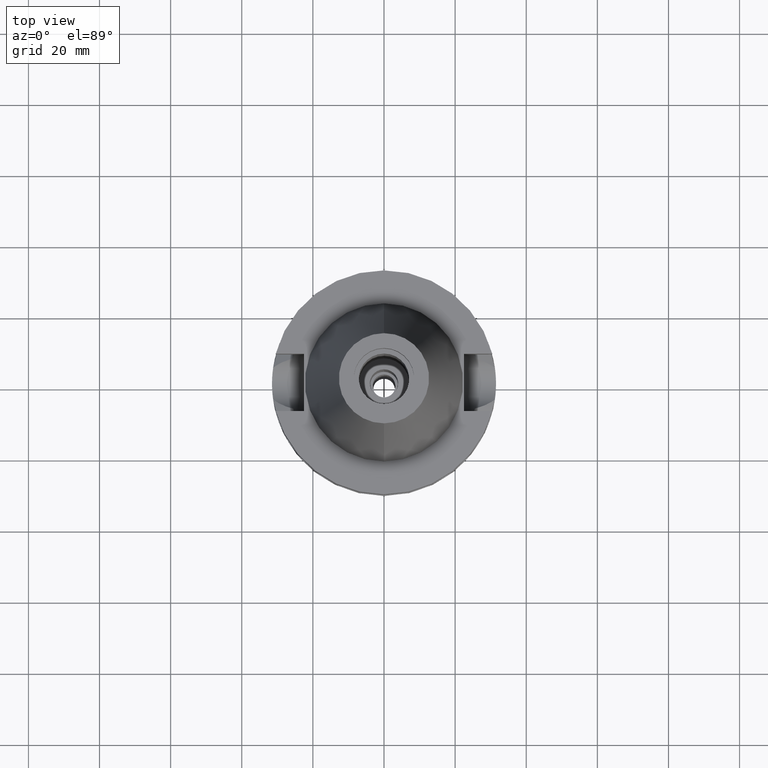
[diagram: clean part render]
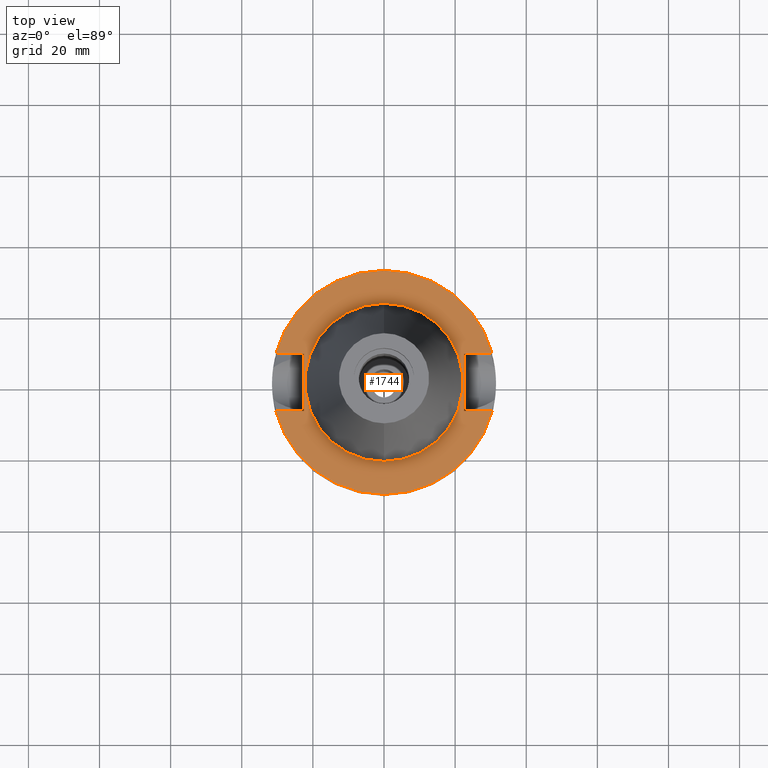
[diagram: same view with one face highlighted and labeled with its STEP entity id]
A machine part, top view. The second image highlights one B-rep face of the part: STEP entity #1744.
In plain terms, the highlighted planar face has unit normal (0, 0, -1).
Its self-contained STEP definition (entity closure, byte-faithful):
#2 = CARTESIAN_POINT ( 'NONE',  ( -22.50000000000000000, -8.050000000000000711, -1.000000000000000000 ) ) ;
#99 = CARTESIAN_POINT ( 'NONE',  ( -22.50000000000000000, 8.050000000000000711, -1.000000000000000000 ) ) ;
#102 = DIRECTION ( 'NONE',  ( -1.000000000000000000, 3.550916904668000126E-14, 0.0000000000000000000 ) ) ;
#144 = CARTESIAN_POINT ( 'NONE',  ( 0.0000000000000000000, -22.22500000000000142, -1.000000000000000000 ) ) ;
#175 = EDGE_CURVE ( 'NONE', #1245, #2963, #1707, .T. ) ;
#217 = VECTOR ( 'NONE', #102, 1000.000000000000000 ) ;
#241 = DIRECTION ( 'NONE',  ( 0.0000000000000000000, -1.000000000000000000, 0.0000000000000000000 ) ) ;
#254 = ORIENTED_EDGE ( 'NONE', *, *, #1003, .F. ) ;
#276 = DIRECTION ( 'NONE',  ( 0.0000000000000000000, -1.000000000000000000, 0.0000000000000000000 ) ) ;
#334 = CARTESIAN_POINT ( 'NONE',  ( 0.0000000000000000000, 2.136641270472000125E-14, -1.000000000000000000 ) ) ;
#388 = VERTEX_POINT ( 'NONE', #2945 ) ;
#537 = ORIENTED_EDGE ( 'NONE', *, *, #175, .F. ) ;
#576 = DIRECTION ( 'NONE',  ( 0.0000000000000000000, -1.000000000000000000, 0.0000000000000000000 ) ) ;
#591 = LINE ( 'NONE', #1011, #1329 ) ;
#639 = VECTOR ( 'NONE', #276, 1000.000000000000000 ) ;
#668 = VERTEX_POINT ( 'NONE', #1925 ) ;
#713 = CIRCLE ( 'NONE', #1464, 31.50000000000000000 ) ;
#756 = EDGE_CURVE ( 'NONE', #2852, #1629, #2573, .T. ) ;
#776 = LINE ( 'NONE', #1441, #1405 ) ;
#820 = ORIENTED_EDGE ( 'NONE', *, *, #1852, .T. ) ;
#860 = ORIENTED_EDGE ( 'NONE', *, *, #1438, .F. ) ;
#872 = FACE_BOUND ( 'NONE', #2811, .T. ) ;
#895 = CARTESIAN_POINT ( 'NONE',  ( -30.45402272279000044, 8.050000000000000711, -1.000000000000000000 ) ) ;
#916 = ORIENTED_EDGE ( 'NONE', *, *, #2850, .F. ) ;
#935 = CARTESIAN_POINT ( 'NONE',  ( -22.50000000000000000, -8.050000000000000711, -1.000000000000000000 ) ) ;
#985 = CARTESIAN_POINT ( 'NONE',  ( 22.50000000000000000, 8.050000000000000711, -1.000000000000000000 ) ) ;
#996 = DIRECTION ( 'NONE',  ( 0.0000000000000000000, 0.0000000000000000000, 1.000000000000000000 ) ) ;
#1003 = EDGE_CURVE ( 'NONE', #1302, #668, #713, .T. ) ;
#1011 = CARTESIAN_POINT ( 'NONE',  ( 22.50000000000000000, -8.050000000000000711, -1.000000000000000000 ) ) ;
#1012 = DIRECTION ( 'NONE',  ( 0.0000000000000000000, 1.000000000000000000, 0.0000000000000000000 ) ) ;
#1049 = CARTESIAN_POINT ( 'NONE',  ( 0.0000000000000000000, 2.136641270472000125E-14, -1.000000000000000000 ) ) ;
#1052 = VERTEX_POINT ( 'NONE', #985 ) ;
#1064 = DIRECTION ( 'NONE',  ( 0.0000000000000000000, -1.000000000000000000, 0.0000000000000000000 ) ) ;
#1095 = CIRCLE ( 'NONE', #1263, 22.22500000000000142 ) ;
#1119 = ORIENTED_EDGE ( 'NONE', *, *, #2343, .T. ) ;
#1131 = AXIS2_PLACEMENT_3D ( 'NONE', #334, #2214, #576 ) ;
#1222 = DIRECTION ( 'NONE',  ( 0.0000000000000000000, 0.0000000000000000000, -1.000000000000000000 ) ) ;
#1245 = VERTEX_POINT ( 'NONE', #2448 ) ;
#1259 = LINE ( 'NONE', #2689, #217 ) ;
#1263 = AXIS2_PLACEMENT_3D ( 'NONE', #2823, #996, #2651 ) ;
#1302 = VERTEX_POINT ( 'NONE', #895 ) ;
#1329 = VECTOR ( 'NONE', #2653, 1000.000000000000000 ) ;
#1370 = ORIENTED_EDGE ( 'NONE', *, *, #1783, .F. ) ;
#1394 = VERTEX_POINT ( 'NONE', #2 ) ;
#1405 = VECTOR ( 'NONE', #1682, 1000.000000000000000 ) ;
#1438 = EDGE_CURVE ( 'NONE', #1394, #388, #2070, .T. ) ;
#1441 = CARTESIAN_POINT ( 'NONE',  ( 22.50000000000000000, 8.050000000000000711, -1.000000000000000000 ) ) ;
#1461 = AXIS2_PLACEMENT_3D ( 'NONE', #1049, #2706, #1064 ) ;
#1464 = AXIS2_PLACEMENT_3D ( 'NONE', #2808, #1222, #1012 ) ;
#1476 = EDGE_LOOP ( 'NONE', ( #1119, #537, #1944, #1963, #820, #254, #916, #860 ) ) ;
#1560 = CARTESIAN_POINT ( 'NONE',  ( 0.0000000000000000000, 22.22500000000000142, -1.000000000000000000 ) ) ;
#1608 = LINE ( 'NONE', #2075, #639 ) ;
#1629 = VERTEX_POINT ( 'NONE', #1560 ) ;
#1682 = DIRECTION ( 'NONE',  ( 1.000000000000000000, -3.506251283225999947E-14, 0.0000000000000000000 ) ) ;
#1707 = CIRCLE ( 'NONE', #1131, 31.50000000000000000 ) ;
#1744 = ADVANCED_FACE ( 'NONE', ( #2221, #872 ), #2697, .F. ) ;
#1783 = EDGE_CURVE ( 'NONE', #1629, #2852, #1095, .T. ) ;
#1852 = EDGE_CURVE ( 'NONE', #1052, #668, #776, .T. ) ;
#1882 = VERTEX_POINT ( 'NONE', #2378 ) ;
#1925 = CARTESIAN_POINT ( 'NONE',  ( 30.45402272279000044, 8.050000000000000711, -1.000000000000000000 ) ) ;
#1944 = ORIENTED_EDGE ( 'NONE', *, *, #2839, .F. ) ;
#1963 = ORIENTED_EDGE ( 'NONE', *, *, #2193, .F. ) ;
#2070 = LINE ( 'NONE', #935, #2290 ) ;
#2075 = CARTESIAN_POINT ( 'NONE',  ( 22.50000000000000000, 8.050000000000000711, -1.000000000000000000 ) ) ;
#2123 = DIRECTION ( 'NONE',  ( 0.0000000000000000000, 0.0000000000000000000, -1.000000000000000000 ) ) ;
#2193 = EDGE_CURVE ( 'NONE', #1052, #1882, #1608, .T. ) ;
#2213 = LINE ( 'NONE', #99, #2717 ) ;
#2214 = DIRECTION ( 'NONE',  ( 0.0000000000000000000, 0.0000000000000000000, -1.000000000000000000 ) ) ;
#2221 = FACE_OUTER_BOUND ( 'NONE', #1476, .T. ) ;
#2277 = ORIENTED_EDGE ( 'NONE', *, *, #756, .F. ) ;
#2290 = VECTOR ( 'NONE', #2542, 1000.000000000000000 ) ;
#2343 = EDGE_CURVE ( 'NONE', #1394, #2963, #1259, .T. ) ;
#2378 = CARTESIAN_POINT ( 'NONE',  ( 22.50000000000000000, -8.050000000000000711, -1.000000000000000000 ) ) ;
#2410 = DIRECTION ( 'NONE',  ( -1.000000000000000000, -3.550916904668000126E-14, 0.0000000000000000000 ) ) ;
#2448 = CARTESIAN_POINT ( 'NONE',  ( 30.45402272279000044, -8.050000000000000711, -1.000000000000000000 ) ) ;
#2524 = CARTESIAN_POINT ( 'NONE',  ( 0.0000000000000000000, 1.212400331155999925E-14, -1.000000000000000000 ) ) ;
#2542 = DIRECTION ( 'NONE',  ( 0.0000000000000000000, 1.000000000000000000, 0.0000000000000000000 ) ) ;
#2573 = CIRCLE ( 'NONE', #1461, 22.22500000000000142 ) ;
#2577 = AXIS2_PLACEMENT_3D ( 'NONE', #2524, #2123, #241 ) ;
#2651 = DIRECTION ( 'NONE',  ( 0.0000000000000000000, 1.000000000000000000, 0.0000000000000000000 ) ) ;
#2653 = DIRECTION ( 'NONE',  ( 1.000000000000000000, 3.573249715389999860E-14, 0.0000000000000000000 ) ) ;
#2685 = CARTESIAN_POINT ( 'NONE',  ( -30.45402272279000044, -8.050000000000000711, -1.000000000000000000 ) ) ;
#2689 = CARTESIAN_POINT ( 'NONE',  ( -22.50000000000000000, -8.050000000000000711, -1.000000000000000000 ) ) ;
#2697 = PLANE ( 'NONE',  #2577 ) ;
#2706 = DIRECTION ( 'NONE',  ( 0.0000000000000000000, 0.0000000000000000000, 1.000000000000000000 ) ) ;
#2717 = VECTOR ( 'NONE', #2410, 1000.000000000000000 ) ;
#2808 = CARTESIAN_POINT ( 'NONE',  ( 0.0000000000000000000, 2.136641270472000125E-14, -1.000000000000000000 ) ) ;
#2811 = EDGE_LOOP ( 'NONE', ( #1370, #2277 ) ) ;
#2823 = CARTESIAN_POINT ( 'NONE',  ( 0.0000000000000000000, 2.136641270472000125E-14, -1.000000000000000000 ) ) ;
#2839 = EDGE_CURVE ( 'NONE', #1882, #1245, #591, .T. ) ;
#2850 = EDGE_CURVE ( 'NONE', #388, #1302, #2213, .T. ) ;
#2852 = VERTEX_POINT ( 'NONE', #144 ) ;
#2945 = CARTESIAN_POINT ( 'NONE',  ( -22.50000000000000000, 8.050000000000000711, -1.000000000000000000 ) ) ;
#2963 = VERTEX_POINT ( 'NONE', #2685 ) ;